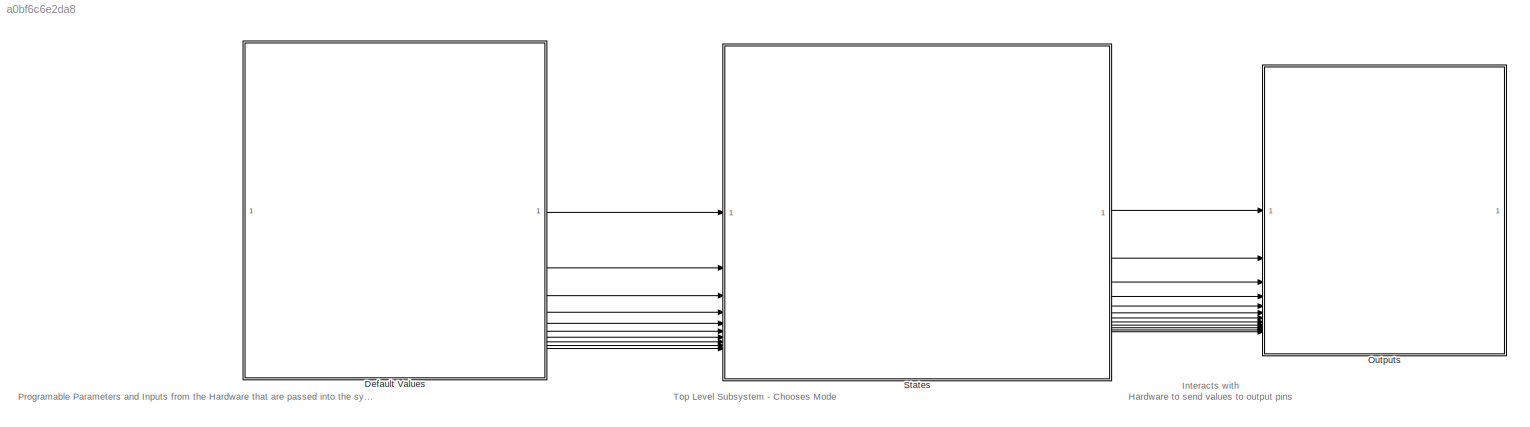
MODEL slx_a0bf6c6e2da8
KIND model
CONFIG AbsTol = auto
CONFIG EnableMultiTasking = on
CONFIG FixedStep = 1e-3
CONFIG MaxStep = auto
CONFIG MinStep = auto
CONFIG RelTol = 1e-3
CONFIG SampleTimeConstraint = Unconstrained
CONFIG SolverName = FixedStepAuto
CONFIG StartTime = 0.0
CONFIG StopTime = 1
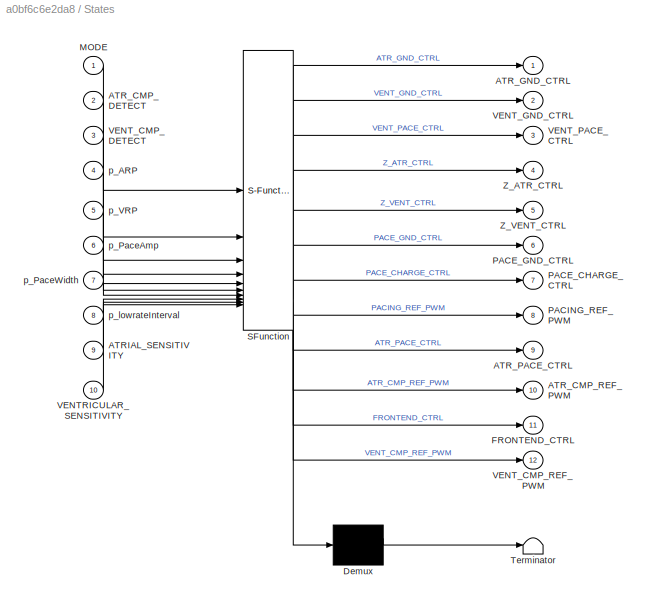
BLOCK [SubSystem]  States
  ErrorFcn = Stateflow.Translate.translate
  PermitHierarchicalResolution = ExplicitOnly
  PortSchema = {"entries":[{"content":{"sides":[{"content":{"connectorIds":["In1","In2","In3","In4","In5","In6","In7","In8","In9","In10"]},"type":"ConnectorPlacement.EquallySpacedRectSide","uuid":"15e03f69-5c25-4f3e-b3fb-d71978e552f4"},{"content":{"connectorIds":["Out7","Out4","Out5","Out8","Out9","Out3","Out6","Out1","Out2","Out10","Out12","Out11"],"side":"RIGHT"},"type":"ConnectorPlacement.EquallySpacedRectSid...<+375ch>
  SFBlockType = Chart
  TreatAsAtomicUnit = on
BLOCK [Demux]  States/ Demux 
  Outputs = 1
BLOCK [S-Function]  States/ SFunction 
  EnableBusSupport = on
  FunctionName = sf_sfun
  PortCounts = [10 13]
  SFcnIsStateOwnerBlock = off
  SFunctionDeploymentMode = off
  Tag = Stateflow S-Function 3
BLOCK [Terminator]  States/ Terminator 
BLOCK [Inport]  States/ATRIAL_SENSITIVITY
  Port = 9
BLOCK [Inport]  States/ATR_CMP_DETECT
  Port = 2
BLOCK [Outport]  States/ATR_CMP_REF_PWM
  Port = 10
BLOCK [Outport]  States/ATR_GND_CTRL
BLOCK [Outport]  States/ATR_PACE_CTRL
  Port = 9
BLOCK [Outport]  States/FRONTEND_CTRL
  Port = 11
BLOCK [Inport]  States/MODE
BLOCK [Outport]  States/PACE_CHARGE_CTRL
  Port = 7
BLOCK [Outport]  States/PACE_GND_CTRL
  Port = 6
BLOCK [Outport]  States/PACING_REF_PWM
  Port = 8
BLOCK [Inport]  States/VENTRICULAR_SENSITIVITY
  Port = 10
BLOCK [Inport]  States/VENT_CMP_DETECT
  Port = 3
BLOCK [Outport]  States/VENT_CMP_REF_PWM
  Port = 12
BLOCK [Outport]  States/VENT_GND_CTRL
  Port = 2
BLOCK [Outport]  States/VENT_PACE_CTRL
  Port = 3
BLOCK [Outport]  States/Z_ATR_CTRL
  Port = 4
BLOCK [Outport]  States/Z_VENT_CTRL
  Port = 5
BLOCK [Inport]  States/p_ARP
  Port = 4
BLOCK [Inport]  States/p_PaceAmp
  Port = 6
BLOCK [Inport]  States/p_PaceWidth
  Port = 7
BLOCK [Inport]  States/p_VRP
  Port = 5
BLOCK [Inport]  States/p_lowrateInterval
  Port = 8
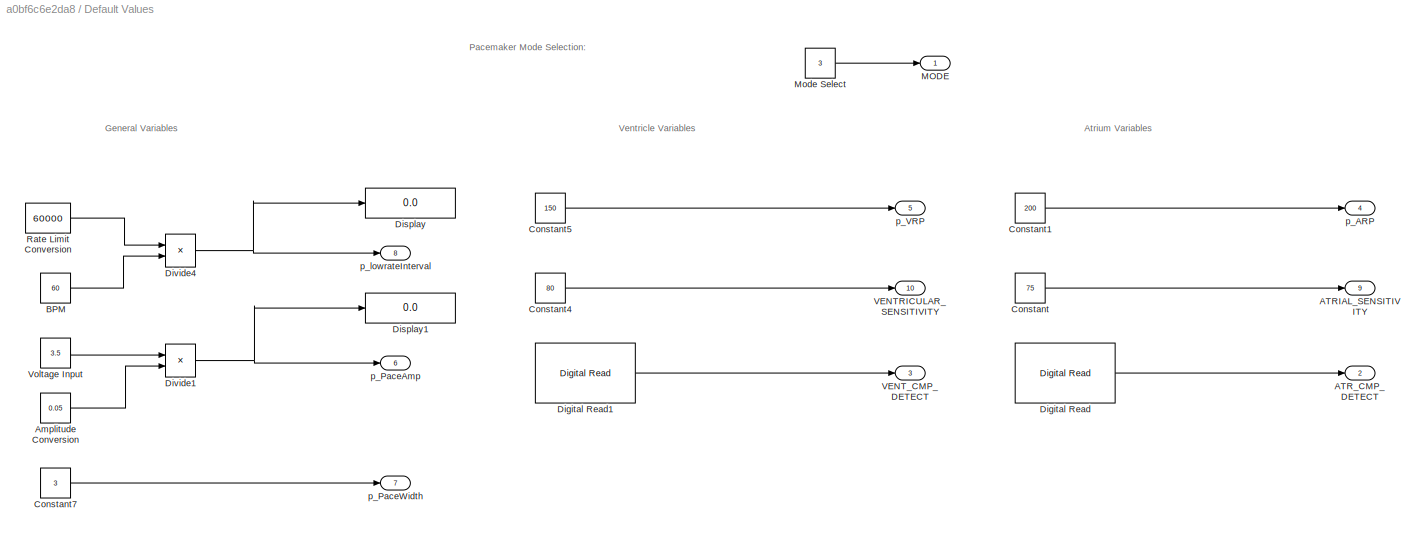
BLOCK [SubSystem] Default Values
BLOCK [Outport] Default Values/ATRIAL_SENSITIVITY
  Port = 9
BLOCK [Outport] Default Values/ATR_CMP_DETECT
  Port = 2
BLOCK [Constant] Default Values/Amplitude Conversion
  Value = 0.05
BLOCK [Constant] Default Values/BPM
  Value = 60
BLOCK [Constant] Default Values/Constant
  Value = 75
BLOCK [Constant] Default Values/Constant1
  Value = 200
BLOCK [Constant] Default Values/Constant4
  Value = 80
BLOCK [Constant] Default Values/Constant5
  Value = 150
BLOCK [Constant] Default Values/Constant7
  Value = 3
BLOCK [Reference] Default Values/Digital Read  REF=frdmk64flib/Digital Read
  SourceBlock = frdmk64flib/Digital Read
  SourceType = freedomk64f.DigitalRead
BLOCK [Reference] Default Values/Digital Read1  REF=frdmk64flib/Digital Read
  SourceBlock = frdmk64flib/Digital Read
  SourceType = freedomk64f.DigitalRead
BLOCK [Display] Default Values/Display
  Decimation = 1
BLOCK [Display] Default Values/Display1
  Decimation = 1
BLOCK [Product] Default Values/Divide1
  Inputs = */
  RndMeth = Nearest
BLOCK [Product] Default Values/Divide4
  Inputs = */
  OutDataTypeStr = Inherit: Keep MSB
  RndMeth = Nearest
BLOCK [Outport] Default Values/MODE
BLOCK [Constant] Default Values/Mode Select
  Value = 3
BLOCK [Constant] Default Values/Rate Limit Conversion
  Value = 60000
BLOCK [Outport] Default Values/VENTRICULAR_SENSITIVITY
  Port = 10
BLOCK [Outport] Default Values/VENT_CMP_DETECT
  Port = 3
BLOCK [Constant] Default Values/Voltage Input
  Value = 3.5
BLOCK [Outport] Default Values/p_ARP
  Port = 4
BLOCK [Outport] Default Values/p_PaceAmp
  Port = 6
BLOCK [Outport] Default Values/p_PaceWidth
  Port = 7
BLOCK [Outport] Default Values/p_VRP
  Port = 5
BLOCK [Outport] Default Values/p_lowrateInterval
  Port = 8
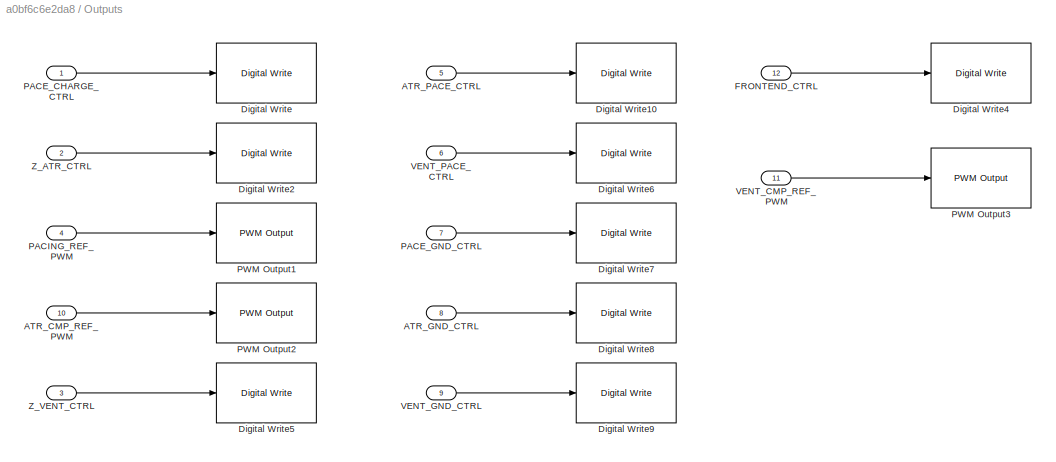
BLOCK [SubSystem] Outputs
BLOCK [Inport] Outputs/ATR_CMP_REF_PWM
  Port = 10
BLOCK [Inport] Outputs/ATR_GND_CTRL
  Port = 8
BLOCK [Inport] Outputs/ATR_PACE_CTRL
  Port = 5
BLOCK [Reference] Outputs/Digital Write  REF=frdmk64flib/Digital Write
  SourceBlock = frdmk64flib/Digital Write
  SourceType = freedomk64f.DigitalWrite
BLOCK [Reference] Outputs/Digital Write10  REF=frdmk64flib/Digital Write
  SourceBlock = frdmk64flib/Digital Write
  SourceType = freedomk64f.DigitalWrite
BLOCK [Reference] Outputs/Digital Write2  REF=frdmk64flib/Digital Write
  SourceBlock = frdmk64flib/Digital Write
  SourceType = freedomk64f.DigitalWrite
BLOCK [Reference] Outputs/Digital Write4  REF=frdmk64flib/Digital Write
  SourceBlock = frdmk64flib/Digital Write
  SourceType = freedomk64f.DigitalWrite
BLOCK [Reference] Outputs/Digital Write5  REF=frdmk64flib/Digital Write
  SourceBlock = frdmk64flib/Digital Write
  SourceType = freedomk64f.DigitalWrite
BLOCK [Reference] Outputs/Digital Write6  REF=frdmk64flib/Digital Write
  SourceBlock = frdmk64flib/Digital Write
  SourceType = freedomk64f.DigitalWrite
BLOCK [Reference] Outputs/Digital Write7  REF=frdmk64flib/Digital Write
  SourceBlock = frdmk64flib/Digital Write
  SourceType = freedomk64f.DigitalWrite
BLOCK [Reference] Outputs/Digital Write8  REF=frdmk64flib/Digital Write
  SourceBlock = frdmk64flib/Digital Write
  SourceType = freedomk64f.DigitalWrite
BLOCK [Reference] Outputs/Digital Write9  REF=frdmk64flib/Digital Write
  SourceBlock = frdmk64flib/Digital Write
  SourceType = freedomk64f.DigitalWrite
BLOCK [Inport] Outputs/FRONTEND_CTRL
  Port = 12
BLOCK [Inport] Outputs/PACE_CHARGE_CTRL
BLOCK [Inport] Outputs/PACE_GND_CTRL
  Port = 7
BLOCK [Inport] Outputs/PACING_REF_PWM
  Port = 4
BLOCK [Reference] Outputs/PWM Output1  REF=frdmk64flib/PWM Output
  SourceBlock = frdmk64flib/PWM Output
  SourceType = freedomk64f.PWMOutput
BLOCK [Reference] Outputs/PWM Output2  REF=frdmk64flib/PWM Output
  SourceBlock = frdmk64flib/PWM Output
  SourceType = freedomk64f.PWMOutput
BLOCK [Reference] Outputs/PWM Output3  REF=frdmk64flib/PWM Output
  SourceBlock = frdmk64flib/PWM Output
  SourceType = freedomk64f.PWMOutput
BLOCK [Inport] Outputs/VENT_CMP_REF_PWM
  Port = 11
BLOCK [Inport] Outputs/VENT_GND_CTRL
  Port = 9
BLOCK [Inport] Outputs/VENT_PACE_CTRL
  Port = 6
BLOCK [Inport] Outputs/Z_ATR_CTRL
  Port = 2
BLOCK [Inport] Outputs/Z_VENT_CTRL
  Port = 3
ANNOTATION (root): Interacts with Hardware to send values to output pins
ANNOTATION (root): Programable Parameters and Inputs from the Hardware that are passed into the system
ANNOTATION (root): Top Level Subsystem - Chooses Mode
ANNOTATION Default Values: Atrium Variables
ANNOTATION Default Values: General Variables
ANNOTATION Default Values: Pacemaker Mode Selection:
ANNOTATION Default Values: Ventricle Variables
LINE  States:1 -> Outputs:8
LINE  States:10 -> Outputs:10
LINE  States:11 -> Outputs:12
LINE  States:12 -> Outputs:11
LINE  States:2 -> Outputs:9
LINE  States:3 -> Outputs:6
LINE  States:4 -> Outputs:2
LINE  States:5 -> Outputs:3
LINE  States:6 -> Outputs:7
LINE  States:7 -> Outputs:1
LINE  States:8 -> Outputs:4
LINE  States:9 -> Outputs:5
LINE Default Values/Amplitude Conversion:1 -> Default Values/Divide1:2
LINE Default Values/BPM:1 -> Default Values/Divide4:2
LINE Default Values/Constant1:1 -> Default Values/p_ARP:1
LINE Default Values/Constant4:1 -> Default Values/VENTRICULAR_SENSITIVITY:1
LINE Default Values/Constant5:1 -> Default Values/p_VRP:1
LINE Default Values/Constant7:1 -> Default Values/p_PaceWidth:1
LINE Default Values/Constant:1 -> Default Values/ATRIAL_SENSITIVITY:1
LINE Default Values/Digital Read1:1 -> Default Values/VENT_CMP_DETECT:1
LINE Default Values/Digital Read:1 -> Default Values/ATR_CMP_DETECT:1
NET Default Values/Divide1:1 -> Default Values/Display1:1, Default Values/p_PaceAmp:1
NET Default Values/Divide4:1 -> Default Values/Display:1, Default Values/p_lowrateInterval:1
LINE Default Values/Mode Select:1 -> Default Values/MODE:1
LINE Default Values/Rate Limit Conversion:1 -> Default Values/Divide4:1
LINE Default Values/Voltage Input:1 -> Default Values/Divide1:1
LINE Default Values:1 ->  States:1
LINE Default Values:10 ->  States:10
LINE Default Values:2 ->  States:2
LINE Default Values:3 ->  States:3
LINE Default Values:4 ->  States:4
LINE Default Values:5 ->  States:5
LINE Default Values:6 ->  States:6
LINE Default Values:7 ->  States:7
LINE Default Values:8 ->  States:8
LINE Default Values:9 ->  States:9
LINE Outputs/ATR_CMP_REF_PWM:1 -> Outputs/PWM Output2:1
LINE Outputs/ATR_GND_CTRL:1 -> Outputs/Digital Write8:1
LINE Outputs/ATR_PACE_CTRL:1 -> Outputs/Digital Write10:1
LINE Outputs/FRONTEND_CTRL:1 -> Outputs/Digital Write4:1
LINE Outputs/PACE_CHARGE_CTRL:1 -> Outputs/Digital Write:1
LINE Outputs/PACE_GND_CTRL:1 -> Outputs/Digital Write7:1
LINE Outputs/PACING_REF_PWM:1 -> Outputs/PWM Output1:1
LINE Outputs/VENT_CMP_REF_PWM:1 -> Outputs/PWM Output3:1
LINE Outputs/VENT_GND_CTRL:1 -> Outputs/Digital Write9:1
LINE Outputs/VENT_PACE_CTRL:1 -> Outputs/Digital Write6:1
LINE Outputs/Z_ATR_CTRL:1 -> Outputs/Digital Write2:1
LINE Outputs/Z_VENT_CTRL:1 -> Outputs/Digital Write5:1
note: NET lines group one-source signal fan-out (src -> all destinations, sorted); 1:1 wires keep LINE
CHART  States states=21 transitions=29
  STATE_LABEL 'AOO'
  STATE_LABEL 'Pacing\nentry:\n%charge release of capacitor C22 into C21\nPACE_CHARGE_CTRL = 0;\nPACE_GND_CTRL = 1;\nATR_PACE_CTRL = 1;\nATR_GND_CTRL = 0;\nZ_ATR_CTRL = 0;\nZ_VENT_CTRL = 0;\nVENT_GND_CTRL = 0;\nVENT_PACE_CTRL = 0;'
  STATE_LABEL 'Discharging\nentry:\n%charging release of capacitor C21 to gnd\nPACE_GND_CTRL = 1;\nVENT_PACE_CTRL = 0;\nZ_ATR_CTRL = 0;\nZ_VENT_CTRL = 0;\nATR_PACE_CTRL = 0;\nATR_GND_CTRL = 1;\nVENT_GND_CTRL = 0;\n'
  STATE_LABEL 'Charging\nentry:\n%charging capacitor C22\nATR_PACE_CTRL = 0;\nVENT_PACE_CTRL = 0;\nPACING_REF_PWM = (p_PaceAmp);\nPACE_CHARGE_CTRL = 1;'
  STATE_LABEL '[MODE == 0]'
  STATE_LABEL 'after(p_PaceWidth, msec)'
  STATE_LABEL 'after(p_lowrateInterval, msec)'
  STATE_LABEL 'Pacing\nentry:\n%charge release of capacitor C22 into C21\nPACE_CHARGE_CTRL = 0;\nPACE_GND_CTRL = 1;\nATR_PACE_CTRL = 1;\nATR_GND_CTRL = 0;\nZ_ATR_CTRL = 0;\nZ_VENT_CTRL = 0;\nVENT_GND_CTRL = 0;\nVENT_PACE_CTRL = 0;'
  STATE_LABEL 'Discharging\nentry:\n%charging release of capacitor C21 to gnd\nPACE_GND_CTRL = 1;\nVENT_PACE_CTRL = 0;\nZ_ATR_CTRL = 0;\nZ_VENT_CTRL = 0;\nATR_PACE_CTRL = 0;\nATR_GND_CTRL = 1;\nVENT_GND_CTRL = 0;\n'
  STATE_LABEL 'Charging\nentry:\n%charging capacitor C22\nATR_PACE_CTRL = 0;\nVENT_PACE_CTRL = 0;\nPACING_REF_PWM = (p_PaceAmp);\nPACE_CHARGE_CTRL = 1;'
  STATE_LABEL '<!DOCTYPE HTML PUBLIC "-//W3C//DTD HTML 4.0//EN" "http://www.w3.org/TR/REC-html40/strict.dtd">\n<html><head><meta name="qrichtext" content="1" /><style type="text/css">\np, li { white-space: pre-wrap; }\n</style></head><body align="center" style=" font-family:\'Helvetica\'; font-size:12px; font-weight:400; font-style:normal;">\n<p align="left" style=" margin-top:0px; margin-bottom:0px; margin-left:0px; ...<+126ch>'
  STATE_LABEL 'VOO'
  STATE_LABEL 'Charging\nentry:\n%charging capacitor C22\nATR_PACE_CTRL = 0;\nVENT_PACE_CTRL = 0;\nPACING_REF_PWM = p_PaceAmp;\nPACE_CHARGE_CTRL = 1;'
  STATE_LABEL 'Pacing\nentry:\n%charge release of capacitor C22 into C21\nPACE_CHARGE_CTRL = 0;\nPACE_GND_CTRL = 1;\nATR_PACE_CTRL = 0;\nATR_GND_CTRL = 0;\nZ_ATR_CTRL = 0;\nZ_VENT_CTRL = 0;\nVENT_GND_CTRL = 0;\nVENT_PACE_CTRL = 1;'
  STATE_LABEL 'Discharging\nentry:\n%charging release of capacitor C21 to gnd\nPACE_GND_CTRL = 1;\nVENT_PACE_CTRL = 0;\nZ_ATR_CTRL = 0;\nZ_VENT_CTRL = 0;\nATR_PACE_CTRL = 0;\nATR_GND_CTRL = 0;\nVENT_GND_CTRL = 1;\n'
  STATE_LABEL '[MODE == 1]'
  STATE_LABEL 'after(p_lowrateInterval, msec)'
  STATE_LABEL 'after(p_PaceWidth, msec)'
  STATE_LABEL 'Charging\nentry:\n%charging capacitor C22\nATR_PACE_CTRL = 0;\nVENT_PACE_CTRL = 0;\nPACING_REF_PWM = p_PaceAmp;\nPACE_CHARGE_CTRL = 1;'
  STATE_LABEL 'Pacing\nentry:\n%charge release of capacitor C22 into C21\nPACE_CHARGE_CTRL = 0;\nPACE_GND_CTRL = 1;\nATR_PACE_CTRL = 0;\nATR_GND_CTRL = 0;\nZ_ATR_CTRL = 0;\nZ_VENT_CTRL = 0;\nVENT_GND_CTRL = 0;\nVENT_PACE_CTRL = 1;'
  STATE_LABEL 'Discharging\nentry:\n%charging release of capacitor C21 to gnd\nPACE_GND_CTRL = 1;\nVENT_PACE_CTRL = 0;\nZ_ATR_CTRL = 0;\nZ_VENT_CTRL = 0;\nATR_PACE_CTRL = 0;\nATR_GND_CTRL = 0;\nVENT_GND_CTRL = 1;\n'
  STATE_LABEL '<!DOCTYPE HTML PUBLIC "-//W3C//DTD HTML 4.0//EN" "http://www.w3.org/TR/REC-html40/strict.dtd">\n<html><head><meta name="qrichtext" content="1" /><style type="text/css">\np, li { white-space: pre-wrap; }\n</style></head><body align="left" style=" font-family:\'Helvetica\'; font-size:12px; font-weight:400; font-style:normal;">\n<p align="left" style=" margin-top:0px; margin-bottom:0px; margin-left:0px; ma...<+148ch>'
  STATE_LABEL 'ModeSelect'
  STATE_LABEL 'AAI'
  STATE_LABEL 'Pacing\nentry:\n%charging release of capacitor C21 to gnd\nPACE_CHARGE_CTRL = 0;\nPACE_GND_CTRL = 1;\nATR_PACE_CTRL = 1;\nATR_GND_CTRL = 0;\nZ_ATR_CTRL = 0;\nZ_VENT_CTRL = 0;\nVENT_GND_CTRL = 0;\nVENT_PACE_CTRL = 0;'
  STATE_LABEL 'Charging\nentry:\n% turn sensing ON\nFRONTEND_CTRL = 1;\nATR_CMP_REF_PWM = ATRIAL_SENSITIVITY;\n%charging capacitor C22\nPACING_REF_PWM = p_PaceAmp;\nPACE_CHARGE_CTRL = 1;\nVENT_PACE_CTRL = 0;\nATR_PACE_CTRL = 0;\n'
  STATE_LABEL 'Check for intrinsic pulse'
  STATE_LABEL 'Discharging\nentry:\n%charging release of capacitor C21 to gnd\nPACE_GND_CTRL = 1;\nVENT_PACE_CTRL = 0;\nATR_PACE_CTRL = 0;\nZ_ATR_CTRL = 0;\nZ_VENT_CTRL = 0;\nATR_GND_CTRL = 1;\nVENT_GND_CTRL = 0;'
  STATE_LABEL '[MODE == 2]'
  STATE_LABEL '[ATR_CMP_DETECT == 1]'
  STATE_LABEL 'after(p_ARP, msec)'
  STATE_LABEL 'after(p_lowrateInterval, msec)'
  STATE_LABEL 'after(p_PaceWidth, msec)'
  STATE_LABEL 'Pacing\nentry:\n%charging release of capacitor C21 to gnd\nPACE_CHARGE_CTRL = 0;\nPACE_GND_CTRL = 1;\nATR_PACE_CTRL = 1;\nATR_GND_CTRL = 0;\nZ_ATR_CTRL = 0;\nZ_VENT_CTRL = 0;\nVENT_GND_CTRL = 0;\nVENT_PACE_CTRL = 0;'
  STATE_LABEL 'Charging\nentry:\n% turn sensing ON\nFRONTEND_CTRL = 1;\nATR_CMP_REF_PWM = ATRIAL_SENSITIVITY;\n%charging capacitor C22\nPACING_REF_PWM = p_PaceAmp;\nPACE_CHARGE_CTRL = 1;\nVENT_PACE_CTRL = 0;\nATR_PACE_CTRL = 0;\n'
  STATE_LABEL 'Check for intrinsic pulse'
  STATE_LABEL 'Discharging\nentry:\n%charging release of capacitor C21 to gnd\nPACE_GND_CTRL = 1;\nVENT_PACE_CTRL = 0;\nATR_PACE_CTRL = 0;\nZ_ATR_CTRL = 0;\nZ_VENT_CTRL = 0;\nATR_GND_CTRL = 1;\nVENT_GND_CTRL = 0;'
  STATE_LABEL 'VVI'
  STATE_LABEL 'Pacing\nentry:\n%charging release of capacitor C21 to gnd\nPACE_CHARGE_CTRL = 0;\nPACE_GND_CTRL = 1;\nATR_PACE_CTRL = 0;\nATR_GND_CTRL = 0;\nZ_ATR_CTRL = 0;\nZ_VENT_CTRL = 0;\nVENT_GND_CTRL = 0;\nVENT_PACE_CTRL = 1;'
  STATE_LABEL 'Charging\nentry:\n% turn sensing ON\nFRONTEND_CTRL = 1;\nVENT_CMP_REF_PWM = VENTRICULAR_SENSITIVITY;\n%charging capacitor C22\nPACING_REF_PWM = p_PaceAmp;\nPACE_CHARGE_CTRL = 1;\nVENT_PACE_CTRL = 0;\nATR_PACE_CTRL = 0;\n'
CHART  states=0 transitions=0
